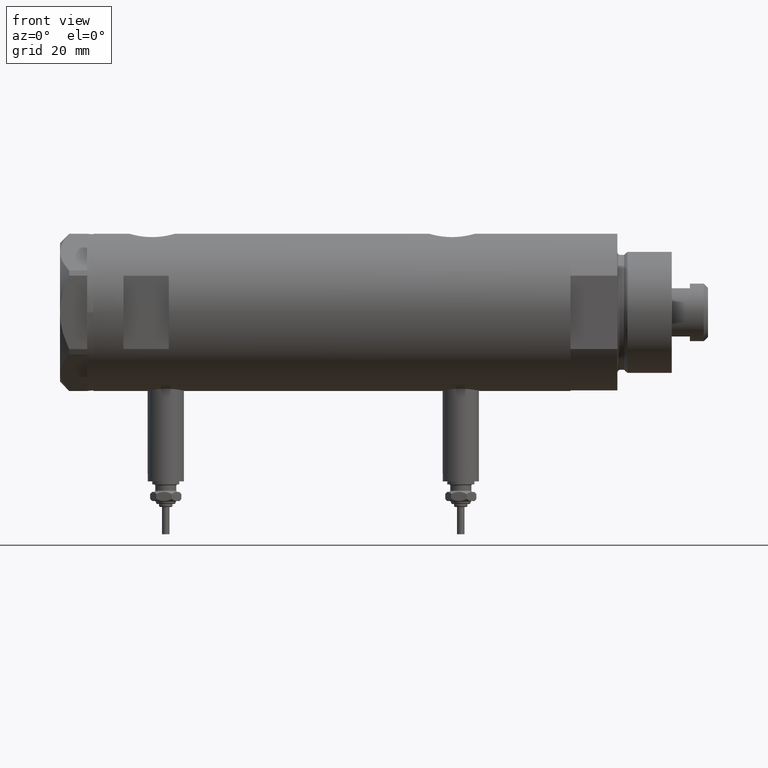
[diagram: clean part render]
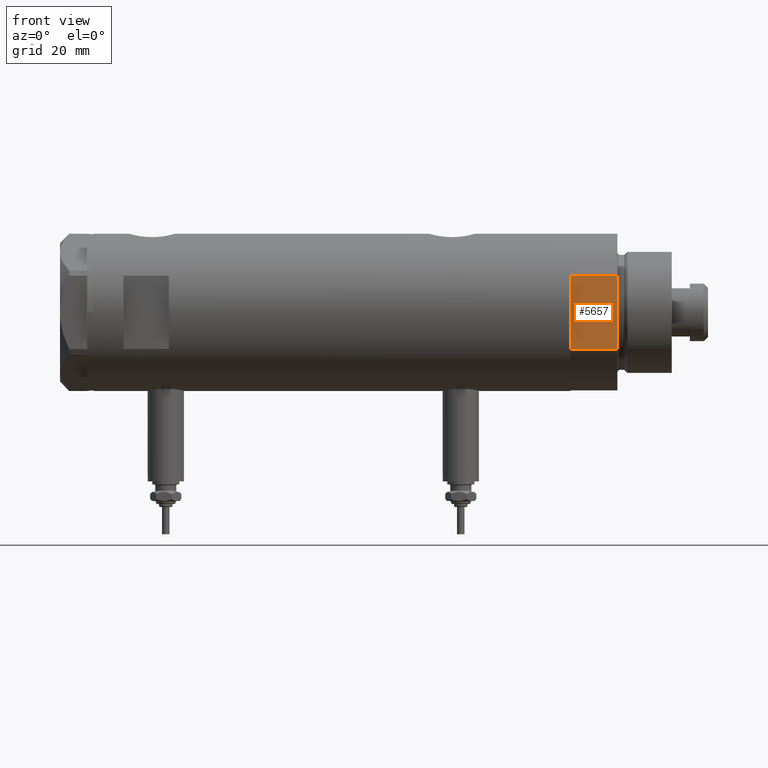
[diagram: same view with one face highlighted and labeled with its STEP entity id]
A machine part, front view. The second image highlights one B-rep face of the part: STEP entity #5657.
In plain terms, the highlighted planar face has unit normal (-0, 1, 0).
Its self-contained STEP definition (entity closure, byte-faithful):
#56 = PLANE ( 'NONE',  #480 ) ;
#129 = CARTESIAN_POINT ( 'NONE',  ( -12.12435565298215323, -22.99999999999999645, 15.50000000000000000 ) ) ;
#239 = VECTOR ( 'NONE', #577, 1000.000000000000000 ) ;
#386 = CARTESIAN_POINT ( 'NONE',  ( -12.12435565298215145, -22.99999999999999645, 15.50000000000000000 ) ) ;
#480 = AXIS2_PLACEMENT_3D ( 'NONE', #1459, #5913, #4926 ) ;
#577 = DIRECTION ( 'NONE',  ( -0.000000000000000000, -0.000000000000000000, 1.000000000000000000 ) ) ;
#658 = ORIENTED_EDGE ( 'NONE', *, *, #4893, .F. ) ;
#676 = VECTOR ( 'NONE', #3733, 1000.000000000000000 ) ;
#735 = ORIENTED_EDGE ( 'NONE', *, *, #821, .T. ) ;
#821 = EDGE_CURVE ( 'NONE', #3895, #5755, #1532, .T. ) ;
#900 = VECTOR ( 'NONE', #5654, 1000.000000000000000 ) ;
#1024 = CARTESIAN_POINT ( 'NONE',  ( 12.12435565298215323, -22.99999999999999645, 0.000000000000000000 ) ) ;
#1069 = CARTESIAN_POINT ( 'NONE',  ( -12.12435565298215501, -22.99999999999999645, 0.000000000000000000 ) ) ;
#1176 = LINE ( 'NONE', #5725, #3871 ) ;
#1198 = VERTEX_POINT ( 'NONE', #129 ) ;
#1259 = LINE ( 'NONE', #4221, #676 ) ;
#1459 = CARTESIAN_POINT ( 'NONE',  ( -12.12435565298215145, -22.99999999999999645, 0.000000000000000000 ) ) ;
#1532 = LINE ( 'NONE', #1024, #239 ) ;
#2921 = ORIENTED_EDGE ( 'NONE', *, *, #6008, .T. ) ;
#3733 = DIRECTION ( 'NONE',  ( -1.000000000000000000, -0.000000000000000000, -0.000000000000000000 ) ) ;
#3871 = VECTOR ( 'NONE', #5116, 1000.000000000000000 ) ;
#3895 = VERTEX_POINT ( 'NONE', #4934 ) ;
#4221 = CARTESIAN_POINT ( 'NONE',  ( -12.12435565298215145, -22.99999999999999645, 0.000000000000000000 ) ) ;
#4714 = LINE ( 'NONE', #386, #900 ) ;
#4893 = EDGE_CURVE ( 'NONE', #3895, #6308, #1259, .T. ) ;
#4901 = CARTESIAN_POINT ( 'NONE',  ( 12.12435565298215323, -22.99999999999999645, 15.50000000000000000 ) ) ;
#4926 = DIRECTION ( 'NONE',  ( 0.000000000000000000, -0.000000000000000000, 1.000000000000000000 ) ) ;
#4934 = CARTESIAN_POINT ( 'NONE',  ( 12.12435565298215323, -22.99999999999999645, 0.000000000000000000 ) ) ;
#5116 = DIRECTION ( 'NONE',  ( -0.000000000000000000, -0.000000000000000000, 1.000000000000000000 ) ) ;
#5327 = ORIENTED_EDGE ( 'NONE', *, *, #5944, .F. ) ;
#5654 = DIRECTION ( 'NONE',  ( -1.000000000000000000, -0.000000000000000000, -0.000000000000000000 ) ) ;
#5657 = ADVANCED_FACE ( 'NONE', ( #5877 ), #56, .F. ) ;
#5725 = CARTESIAN_POINT ( 'NONE',  ( -12.12435565298215145, -22.99999999999999645, 0.000000000000000000 ) ) ;
#5755 = VERTEX_POINT ( 'NONE', #4901 ) ;
#5877 = FACE_OUTER_BOUND ( 'NONE', #6127, .T. ) ;
#5913 = DIRECTION ( 'NONE',  ( -0.000000000000000000, 1.000000000000000000, 0.000000000000000000 ) ) ;
#5944 = EDGE_CURVE ( 'NONE', #6308, #1198, #1176, .T. ) ;
#6008 = EDGE_CURVE ( 'NONE', #5755, #1198, #4714, .T. ) ;
#6127 = EDGE_LOOP ( 'NONE', ( #2921, #5327, #658, #735 ) ) ;
#6308 = VERTEX_POINT ( 'NONE', #1069 ) ;